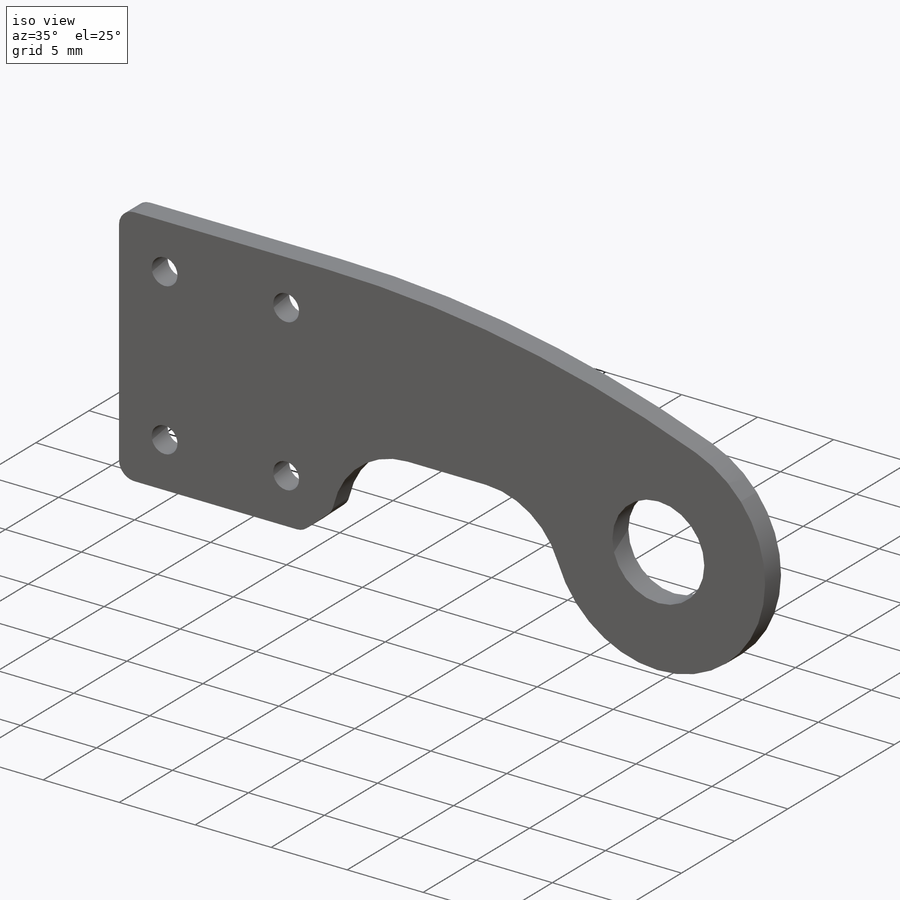
[diagram: iso view]
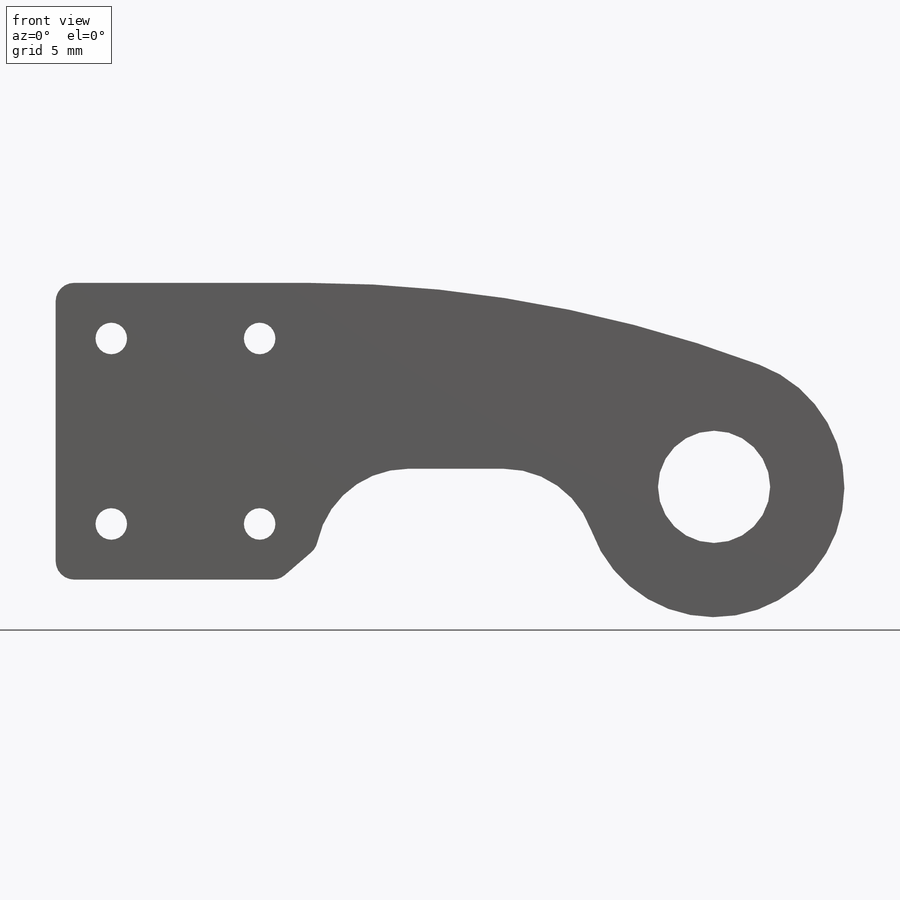
[diagram: front view]
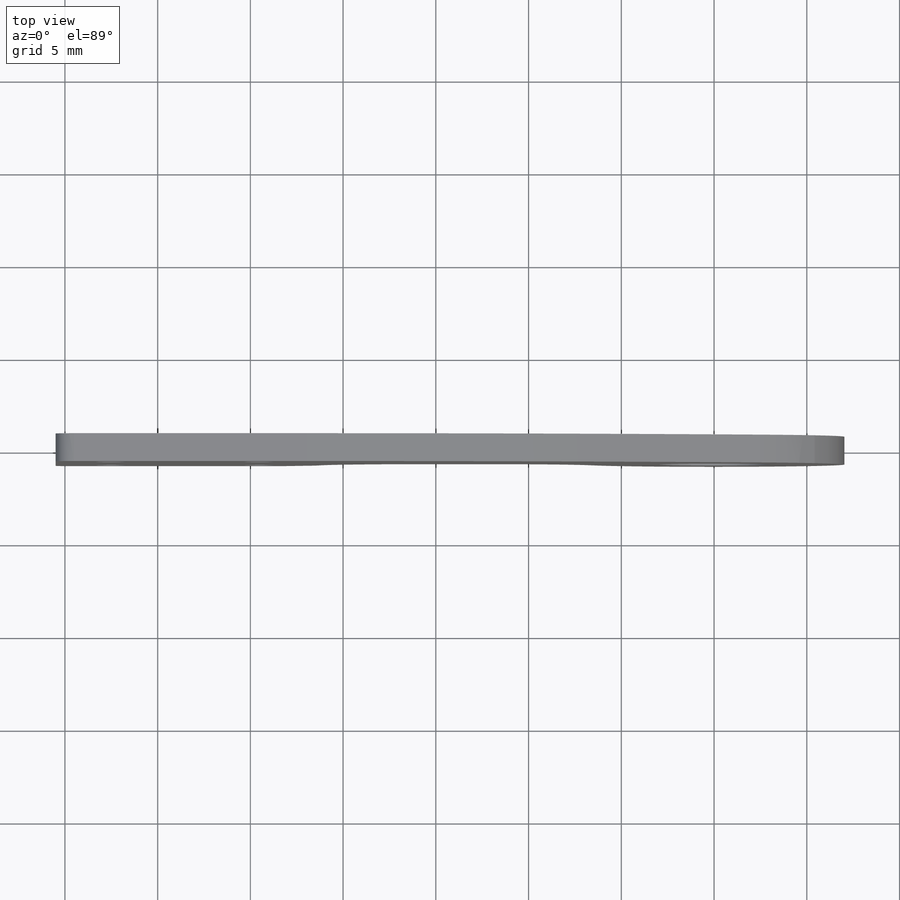
[diagram: top view]
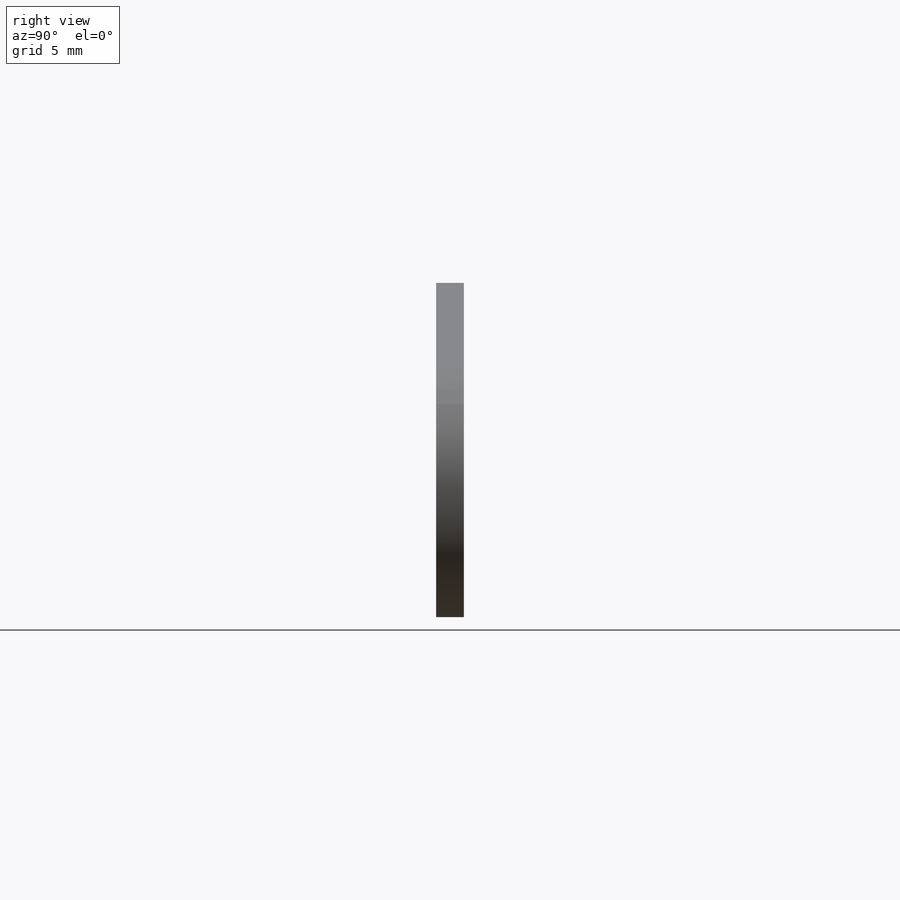
[diagram: right view]
SOLIDWORKS PART (.sldprt)
format: sldprt  version: not decoded by parser v0  size: 227,328 bytes
history: native  units: mm
features: plane x3, fillet x3, sketch x2, extrude x2, material x1, chamfer x1 (+9 scaffold rows collapsed)
feature tree (21):
  scaffold x9  (default folders/planes/origin — collapsed)
  material  "Hexcel AS4C (3000 Filaments)"
  plane  "Plan de face"
  plane  "Plan de dessus"
  plane  "Plan de droite"
  sketch  "Esquisse1"  dims[c1.D1=~9.507468mm c1.D8=14.05mm c1.D9=6.05mm c1.D10=1.7mm c1.D11=1.7mm c1.D12=1.7mm c1.D13=1.7mm c2.D1=8.0mm c2.D2=10.0mm c2.D3=3.0mm c2.D4=14.0mm c2.D5=3.0mm c2.D6=16.0mm c2.D7=5.0mm c2.D14=3.975mm c2.D15=35.5mm c3.D14=0.975mm]
  extrude  "Boss.-Extru.1"  Depth=1.5mm
  fillet  "Congé1"  Radius=5mm
  fillet  "Congé2"  Radius=1mm
  chamfer  "Chanfrein1"  Distance=2mm Angle=45deg
  fillet  "Congé3"  Radius=1mm
  sketch  "Esquisse2"
  extrude  "Boss.-Extru.2"  [1 undecoded]
decode coverage: 6 of 8 modeling features carry decoded parameters
note: ~ marks probable driven/reference dimensions
note: 1 parameter value undecoded
note: suppression state not decoded; provenance and decode notes live in map.json
